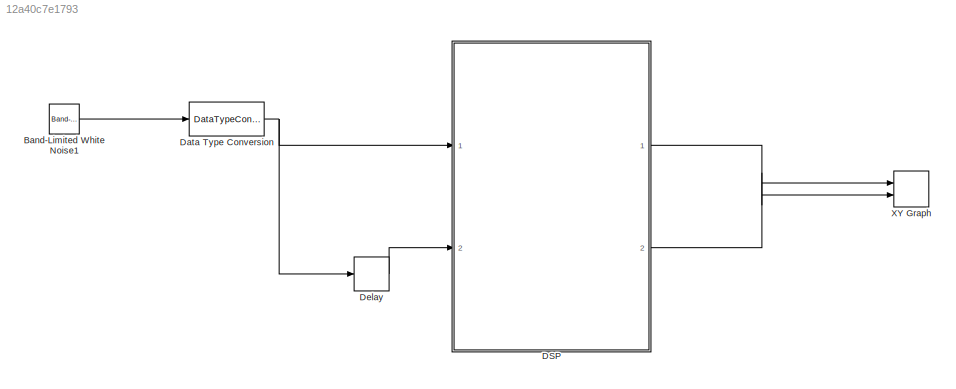
MODEL slx_12a40c7e1793
KIND model
CONFIG AbsTol = auto
CONFIG EnableMultiTasking = off
CONFIG FixedStep = auto
CONFIG MaxStep = auto
CONFIG MinStep = auto
CONFIG RelTol = 1e-3
CONFIG SampleTimeConstraint = Unconstrained
CONFIG SolverName = FixedStepDiscrete
CONFIG StartTime = 0.0
CONFIG StopTime = 0.001
WORKSPACE source: mxarray member
WORKSPACE test = 0
BLOCK [Reference] Band-Limited White Noise1  REF=simulink/Sources/Band-Limited
White Noise
  Ports = [0, 1]
  SourceBlock = simulink/Sources/Band-Limited\nWhite Noise
  SourceProductBaseCode = SL
  SourceType = Band-Limited White Noise.
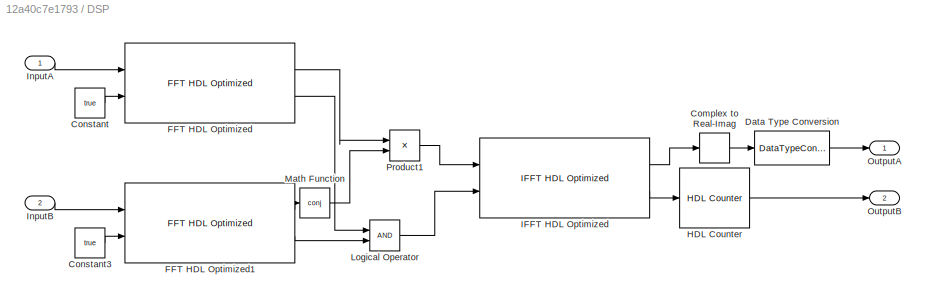
BLOCK [SubSystem] DSP
  Ports = [2, 2]
  RequestExecContextInheritance = off
BLOCK [ComplexToRealImag] DSP/Complex to Real-Imag
  Output = Real
  Ports = [1, 1]
BLOCK [Constant] DSP/Constant
  OutDataTypeStr = boolean
  SampleTime = 1/312.5e6
  Value = true
BLOCK [Constant] DSP/Constant3
  OutDataTypeStr = boolean
  SampleTime = 1/312.5e6
  Value = true
BLOCK [DataTypeConversion] DSP/Data Type Conversion
  OutDataTypeStr = fixdt(1,16,0)
  RndMeth = Floor
  SaturateOnIntegerOverflow = off
BLOCK [Reference] DSP/FFT HDL Optimized  REF=dsphdlxfrm/FFT
HDL Optimized
  Ports = [2, 2]
  SourceBlock = dsphdlxfrm/FFT\nHDL Optimized
  SourceProductBaseCode = DS
  SourceType = FFT HDL Optimized
BLOCK [Reference] DSP/FFT HDL Optimized1  REF=dsphdlxfrm/FFT
HDL Optimized
  Ports = [2, 2]
  SourceBlock = dsphdlxfrm/FFT\nHDL Optimized
  SourceProductBaseCode = DS
  SourceType = FFT HDL Optimized
BLOCK [Reference] DSP/HDL Counter  REF=hdlsllib/Sources/HDL Counter
  Ports = [1, 1]
  SourceBlock = hdlsllib/Sources/HDL Counter
  SourceProductBaseCode = SL
  SourceType = HDL Counter
BLOCK [Reference] DSP/IFFT HDL Optimized  REF=dsphdlxfrm/IFFT
HDL Optimized
  Ports = [2, 2]
  SourceBlock = dsphdlxfrm/IFFT\nHDL Optimized
  SourceProductBaseCode = DS
  SourceType = IFFT HDL Optimized
BLOCK [Inport] DSP/InputA
  OutDataTypeStr = fixdt(1,16,0)
BLOCK [Inport] DSP/InputB
  OutDataTypeStr = fixdt(1,16,0)
  Port = 2
BLOCK [Logic] DSP/Logical Operator
  AllPortsSameDT = off
  OutDataTypeStr = boolean
  Ports = [2, 1]
BLOCK [Math] DSP/Math Function
  Operator = conj
  Ports = [1, 1]
BLOCK [Outport] DSP/OutputA
  OutDataTypeStr = fixdt(1,16,0)
  VectorParamsAs1DForOutWhenUnconnected = off
BLOCK [Outport] DSP/OutputB
  OutDataTypeStr = fixdt(1,16,0)
  Port = 2
  VectorParamsAs1DForOutWhenUnconnected = off
BLOCK [Product] DSP/Product1
  Ports = [2, 1]
BLOCK [DataTypeConversion] Data Type Conversion
  ConvertRealWorld = Stored Integer (SI)
  OutDataTypeStr = fixdt(1,16,0)
  RndMeth = Floor
  SaturateOnIntegerOverflow = off
BLOCK [Delay] Delay
  DelayLength = 80
  InitialCondition = 0
  InputPortMap = u0
  Ports = [1, 1]
BLOCK [Record] XY Graph
  CompatibilityTag = XY
  FileSettingsInternal = {"entries":[{"content":{"excelSettings":{"content":{},"type":"Streamout.ExcelSettings"}},"type":"Streamout.FileSettingStorage","uuid":"6b793c2c-e135-4623-87cd-5f092496b2ec"}],"packageUris":["http://schema.mathworks.com/mf0/streamout_blocks/R2020a"],"version":"1.0"}
  Layout = [1 1]
  Ports = [2]
  SignalsInternal = {"entries":[{"content":{"signals":[{"content":{"blockPath":["System_Template/XY Graph"],"channel":[],"dimensions":[1,1],"domain":"System_Template/XY Graph","lineColor":"#a2142f","plots":[1],"port":1,"sid":[""],"signalID":29,"signalName":"DSP:1"},"type":"RecordBlkView.Signal","uuid":"2da7a736-7949-41f2-ad0b-a1a27dbd08a9"},{"content":{"blockPath":["System_Template/XY Graph"],"channel":[],"dimensions...<+385ch>
  VisualizationBindings = {"xyplotplugin":{"info":[{"series":[{"bindingParametersList":[{"parameter":"X-Axis","signalID":33,"signalName":"DSP:2"},{"parameter":"Y-Axis","signalID":29,"signalName":"DSP:1"}],"seriesID":57089}],"subplotID":1}]}}
LINE Band-Limited White Noise1:1 -> Data Type Conversion:1
LINE DSP/Complex to Real-Imag:1 -> DSP/Data Type Conversion:1
LINE DSP/Constant3:1 -> DSP/FFT HDL Optimized1:2
LINE DSP/Constant:1 -> DSP/FFT HDL Optimized:2
LINE DSP/Data Type Conversion:1 -> DSP/OutputA:1
LINE DSP/FFT HDL Optimized1:1 -> DSP/Math Function:1
LINE DSP/FFT HDL Optimized1:2 -> DSP/Logical Operator:2
LINE DSP/FFT HDL Optimized:1 -> DSP/Product1:1
LINE DSP/FFT HDL Optimized:2 -> DSP/Logical Operator:1
LINE DSP/HDL Counter:1 -> DSP/OutputB:1
LINE DSP/IFFT HDL Optimized:1 -> DSP/Complex to Real-Imag:1
LINE DSP/IFFT HDL Optimized:2 -> DSP/HDL Counter:1
LINE DSP/InputA:1 -> DSP/FFT HDL Optimized:1
LINE DSP/InputB:1 -> DSP/FFT HDL Optimized1:1
LINE DSP/Logical Operator:1 -> DSP/IFFT HDL Optimized:2
LINE DSP/Math Function:1 -> DSP/Product1:2
LINE DSP/Product1:1 -> DSP/IFFT HDL Optimized:1
LINE DSP:1 -> XY Graph:1
LINE DSP:2 -> XY Graph:2
NET Data Type Conversion:1 -> DSP:1, Delay:1
LINE Delay:1 -> DSP:2
note: NET lines group one-source signal fan-out (src -> all destinations, sorted); 1:1 wires keep LINE
